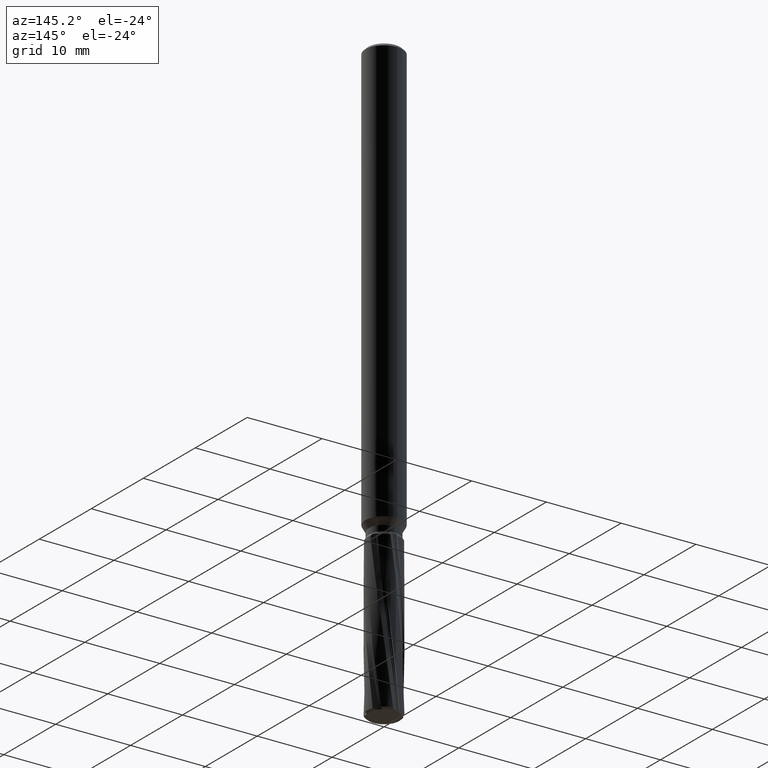
[diagram: clean part render]
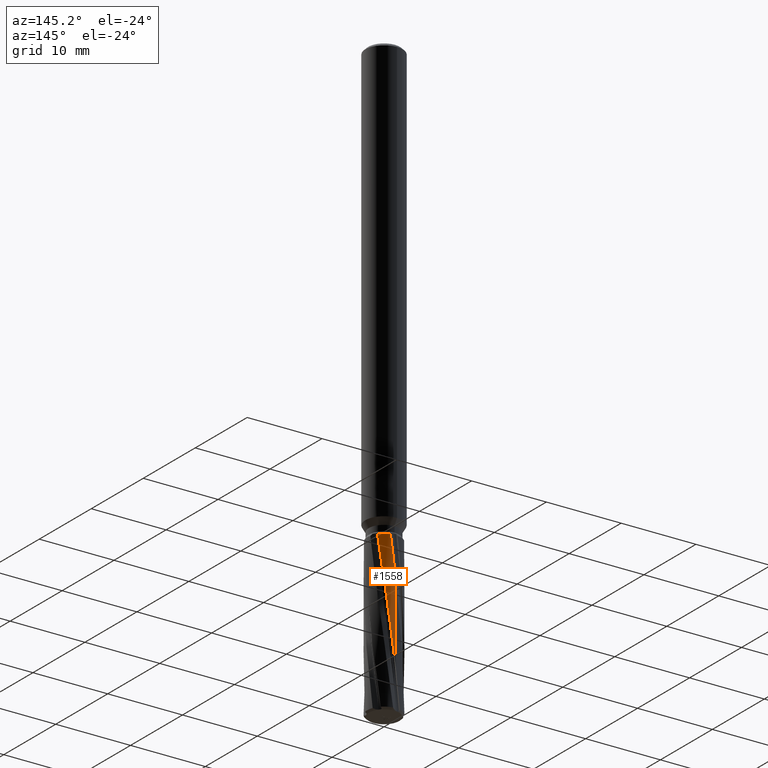
[diagram: same view with one face highlighted and labeled with its STEP entity id]
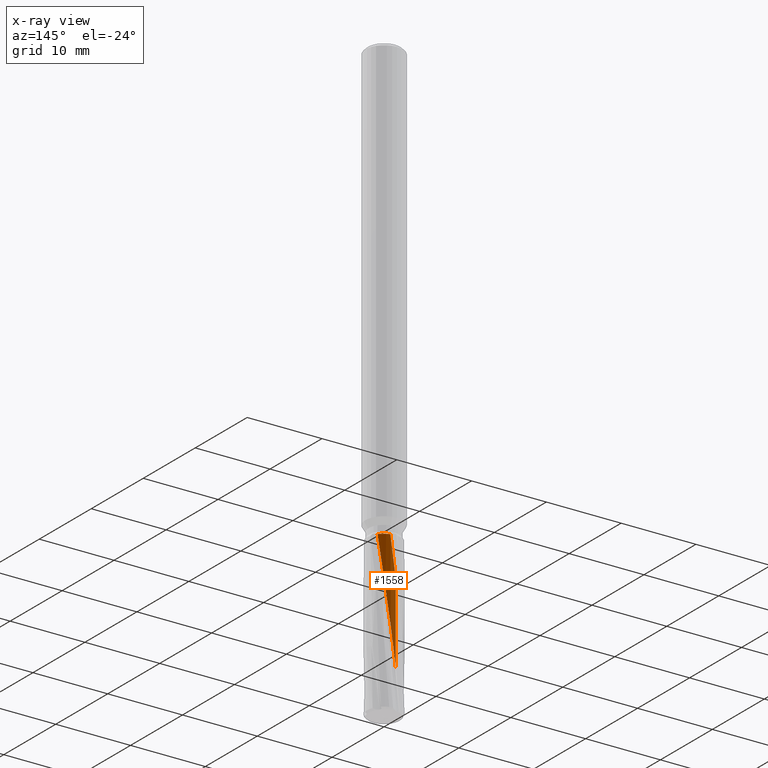
[diagram: x-ray of the same camera — body ghosted, the highlighted face saturated]
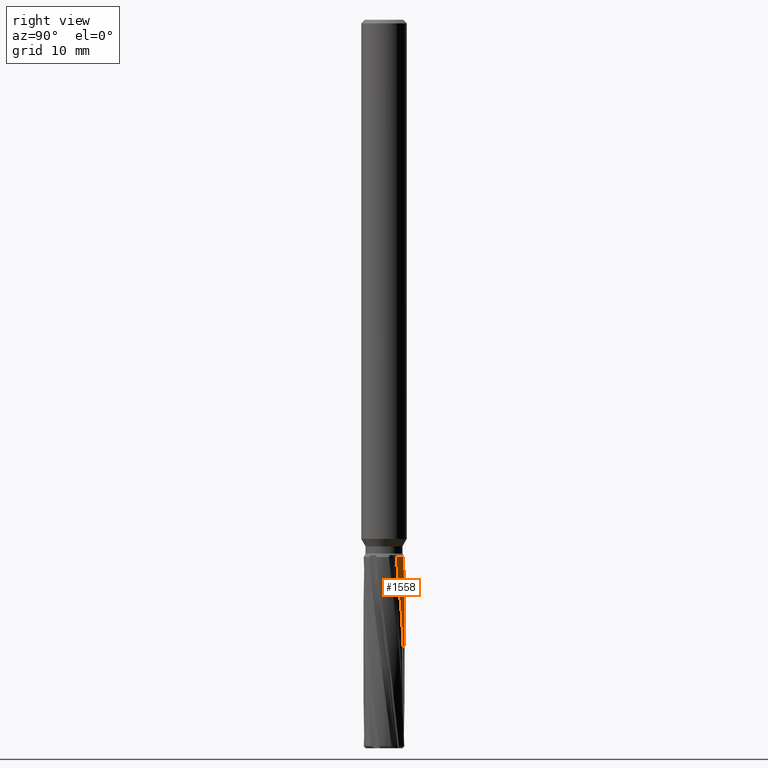
[diagram: same view with one face highlighted and labeled with its STEP entity id]
A machine part, auxiliary view. The second image highlights one B-rep face of the part: STEP entity #1558.
The next image is the same camera in x-ray: the body ghosted, the highlighted face saturated — about 0% of this face is hidden behind the body in this view.
A second angle (right view) of the same face is appended — the face is thin or edge-on in the first view.
In plain terms, the highlighted cylindrical surface (edge-blend (fillet) strip) has radius 2.25 mm, axis along (-0, -0, 1).
Its self-contained STEP definition (entity closure, byte-faithful):
#824=VERTEX_POINT('',#2086);
#874=EDGE_CURVE('',#824,#1158,#2140,.T.);
#1158=VERTEX_POINT('',#2454);
#1224=VERTEX_POINT('',#2524);
#1342=EDGE_CURVE('',#824,#1394,#2656,.T.);
#1392=EDGE_CURVE('',#1224,#1158,#2710,.T.);
#1394=VERTEX_POINT('',#2712);
#1558=ADVANCED_FACE('',(#2889),#2890,.T.);
#1806=EDGE_CURVE('',#1394,#1224,#3160,.T.);
#2086=CARTESIAN_POINT('',(1.77702022773359E-011,2.25,-64.1253749104153));
#2140=LINE('',#4656,#4657);
#2454=CARTESIAN_POINT('',(-1.80381165373545E-015,2.25,-74.8179904956601));
#2524=CARTESIAN_POINT('',(1.80198626379995,1.34734758138956,-59.0));
#2656=B_SPLINE_CURVE_WITH_KNOTS('',3,(#8077,#8078,#8079,#8080,#8081,#8082,#8083,#8084,#8085,#8086,#8087,#8088,#8089,#8090),.UNSPECIFIED.,.F.,.F.,(4,2,2,2,2,2,4),(0.0,2.61756637323202,11.8450242771936,16.4488720370813,17.4190606787012,20.8717719712839,21.5184970563479),.UNSPECIFIED.);
#2710=B_SPLINE_CURVE_WITH_KNOTS('',3,(#8391,#8392,#8393,#8394,#8395,#8396,#8397,#8398,#8399,#8400,#8401,#8402,#8403,#8404,#8405,#8406,#8407,#8408),.UNSPECIFIED.,.F.,.F.,(4,2,2,2,2,2,2,2,4),(0.0,2.24763169876047,3.80169949731797,7.09312000792042,9.53967202961121,10.4392829022641,13.5772196107818,15.133595275264,16.6910961191489),.UNSPECIFIED.);
#2712=CARTESIAN_POINT('',(0.640961904264663,2.15677255112388,-59.0));
#2889=FACE_OUTER_BOUND('',#9297,.T.);
#2890=CYLINDRICAL_SURFACE('',#9298,2.25);
#3160=CIRCLE('',#11204,2.25);
#4656=CARTESIAN_POINT('',(-2.7695423359542E-016,2.25,-69.3875));
#4657=VECTOR('',#12169,1.0);
#8077=CARTESIAN_POINT('',(-1.76215847172596,1.39903449583076,-79.775));
#8078=CARTESIAN_POINT('',(-1.69272804626209,1.48648581514512,-78.9096523586696));
#8079=CARTESIAN_POINT('',(-1.61685295546805,1.56868785918267,-78.0431285386851));
#8080=CARTESIAN_POINT('',(-1.24704263854732,1.91380821370546,-74.128287512299));
#8081=CARTESIAN_POINT('',(-0.893768176439691,2.10181158467715,-71.1689947070398));
#8082=CARTESIAN_POINT('',(-0.321083584324821,2.23555899987261,-66.6093618439931));
#8083=CARTESIAN_POINT('',(-0.124644670067208,2.25525545751649,-65.0684372612764));
#8084=CARTESIAN_POINT('',(0.114982509721081,2.24744754141901,-63.2504754724576));
#8085=CARTESIAN_POINT('',(0.157094023835252,2.24491390396242,-62.9335808975688));
#8086=CARTESIAN_POINT('',(0.350651443939968,2.22767942675448,-61.4915118763579));
#8087=CARTESIAN_POINT('',(0.474484496556834,2.20229219439206,-60.6309496532019));
#8088=CARTESIAN_POINT('',(0.603845263343664,2.16756024199305,-59.3913230298968));
#8089=CARTESIAN_POINT('',(0.623055921721422,2.16209395261458,-59.1957895736692));
#8090=CARTESIAN_POINT('',(0.640961904264664,2.15677255112388,-59.0));
#8391=CARTESIAN_POINT('',(1.80198626379995,1.34734758138956,-59.0));
#8392=CARTESIAN_POINT('',(1.72238641396925,1.45380699689356,-59.7373240327993));
#8393=CARTESIAN_POINT('',(1.64320288419141,1.54011485086339,-60.4781928108995));
#8394=CARTESIAN_POINT('',(1.52491519452635,1.65581052888214,-61.7520497846728));
#8395=CARTESIAN_POINT('',(1.48549662262563,1.69194601319417,-62.2296805423271));
#8396=CARTESIAN_POINT('',(1.28497578889907,1.8553181525803,-64.3341070491866));
#8397=CARTESIAN_POINT('',(1.13327720154273,1.95259115601768,-65.7080419450541));
#8398=CARTESIAN_POINT('',(0.841110903475217,2.09142419073577,-68.1730305503066));
#8399=CARTESIAN_POINT('',(0.712264633766878,2.13870278310779,-69.2172493587265));
#8400=CARTESIAN_POINT('',(0.530722113547043,2.18709521282398,-70.6774908642383));
#8401=CARTESIAN_POINT('',(0.481154580639254,2.19855314087717,-71.0727820041669));
#8402=CARTESIAN_POINT('',(0.254573553638348,2.24273973432915,-72.8605661241258));
#8403=CARTESIAN_POINT('',(0.0750828255554486,2.25588051310794,-74.2336125481858));
#8404=CARTESIAN_POINT('',(-0.19280196558224,2.2434866933061,-76.312307607821));
#8405=CARTESIAN_POINT('',(-0.281724475709207,2.23409551939291,-77.0069988817207));
#8406=CARTESIAN_POINT('',(-0.458802245815842,2.20455519663795,-78.3916751484071));
#8407=CARTESIAN_POINT('',(-0.546741437679263,2.18443620387054,-79.0825667735361));
#8408=CARTESIAN_POINT('',(-0.63356610494079,2.1589566903183,-79.775));
#9297=EDGE_LOOP('',(#12937,#12938,#12939,#12940));
#9298=AXIS2_PLACEMENT_3D('',#12941,#12942,#12943);
#11204=AXIS2_PLACEMENT_3D('',#13156,#13157,#13158);
#12169=DIRECTION('',(0.0,0.0,-1.0));
#12937=ORIENTED_EDGE('',*,*,#874,.F.);
#12938=ORIENTED_EDGE('',*,*,#1342,.T.);
#12939=ORIENTED_EDGE('',*,*,#1806,.T.);
#12940=ORIENTED_EDGE('',*,*,#1392,.T.);
#12941=CARTESIAN_POINT('',(0.0,0.0,-69.3875));
#12942=DIRECTION('',(-0.0,-0.0,1.0));
#12943=DIRECTION('',(0.0,1.0,0.0));
#13156=CARTESIAN_POINT('',(0.0,0.0,-59.0));
#13157=DIRECTION('',(0.0,0.0,-1.0));
#13158=DIRECTION('',(0.0,1.0,0.0));